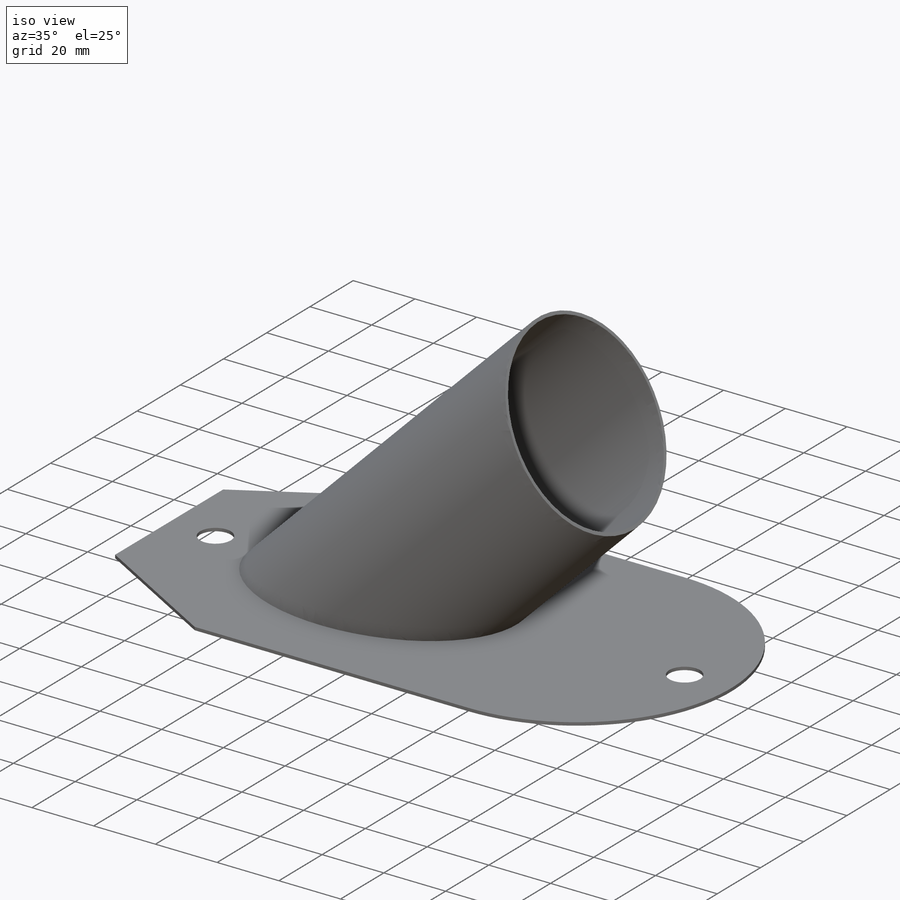
[diagram: iso view]
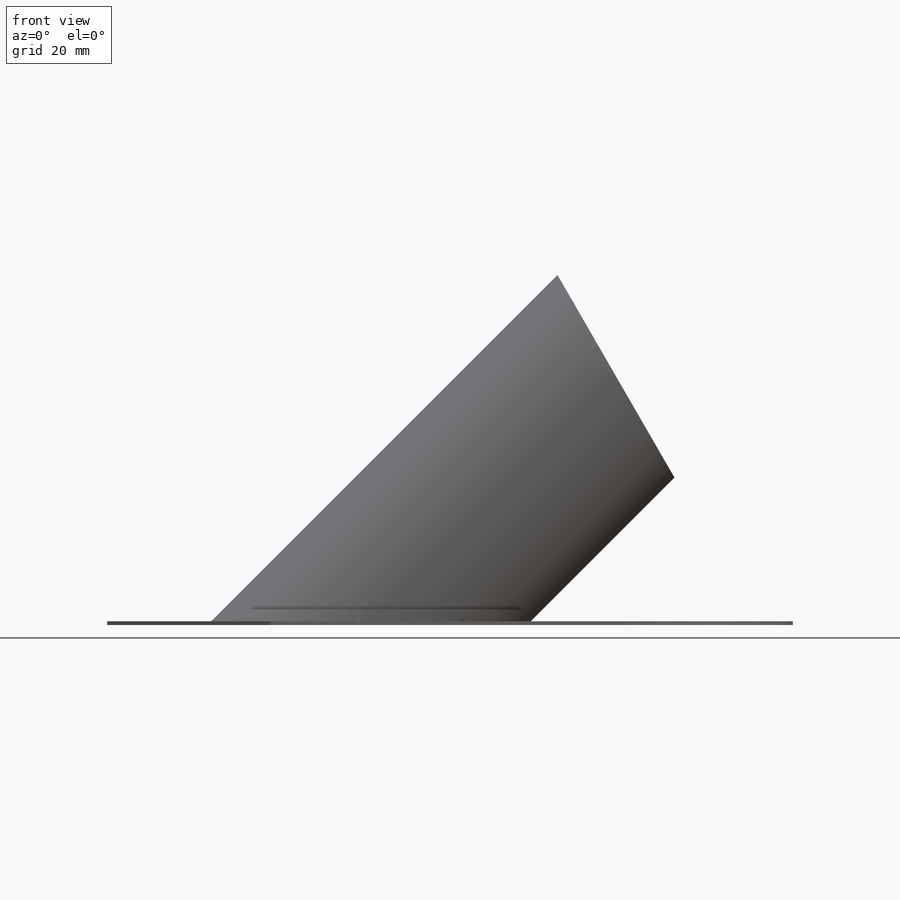
[diagram: front view]
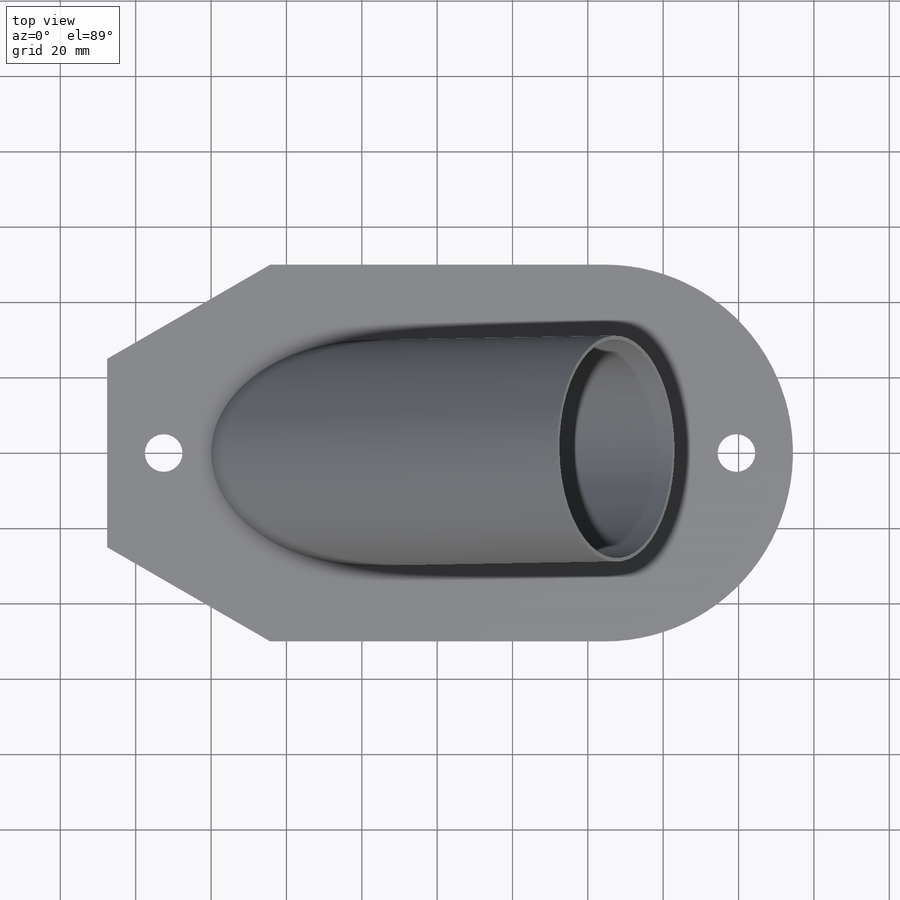
[diagram: top view]
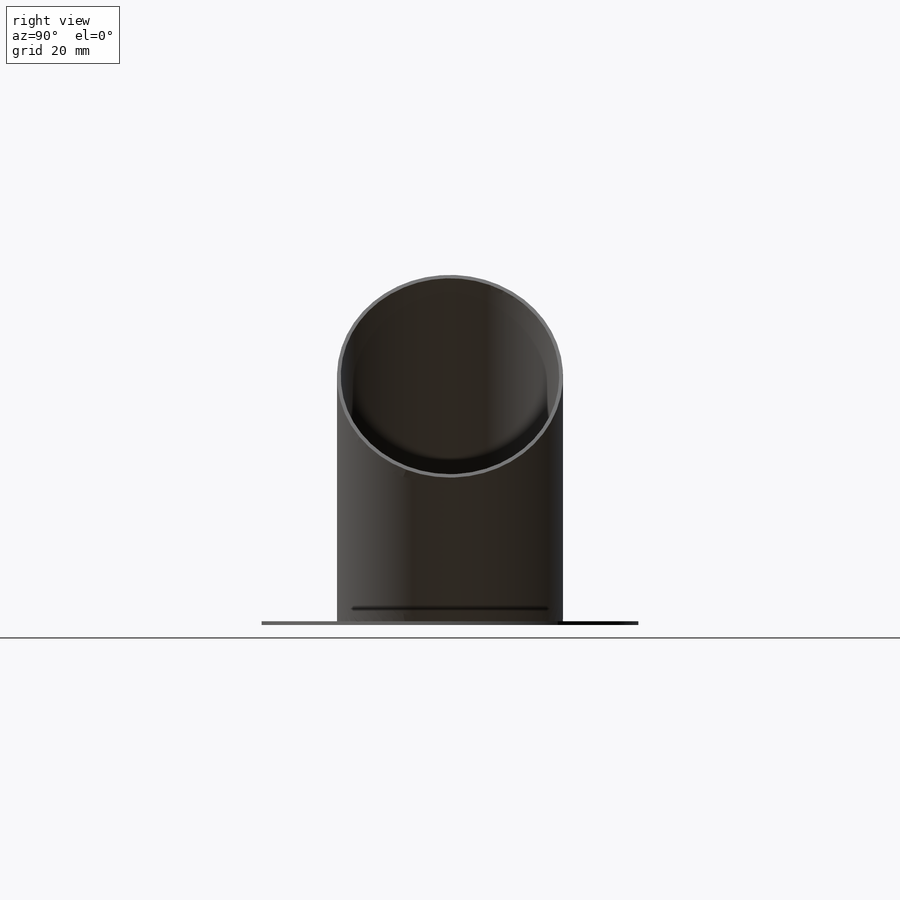
[diagram: right view]
SOLIDWORKS PART (.sldprt)
format: sldprt  version: not decoded by parser v0  size: 335,360 bytes
history: native  units: mm
features: sketch x3, shell x2, material x1, revolve x1, cut_extrude x1, extrude x1 (+14 scaffold rows collapsed)
feature tree (23):
  scaffold x14  (default folders/planes/origin — collapsed)
  material  "Material <not specified>"
  sketch  "Sketch1"  dims[c1.D1=45.0deg c2.D1=30.0mm]
  revolve  "Revolve1"  Angle=360deg
  sketch  "Sketch2"  dims[c1.D1=~69.03472mm c2.D1=75.0deg]
  cut_extrude  "Cut-Extrude1"  Depth=60mm
  shell  "Shell1"  Thickness=1mm
  sketch  "Sketch3"  dims[c1.D1=10.0mm c1.D2=10.0mm c2.D1=15.0mm c2.D2=15.0mm c3.D1=25.0mm]
  extrude  "Extrude1"  Depth=1mm
  shell  "Shell2"  Thickness=1mm
decode coverage: 8 of 8 modeling features carry decoded parameters
note: ~ marks probable driven/reference dimensions
note: suppression state not decoded; provenance and decode notes live in map.json
